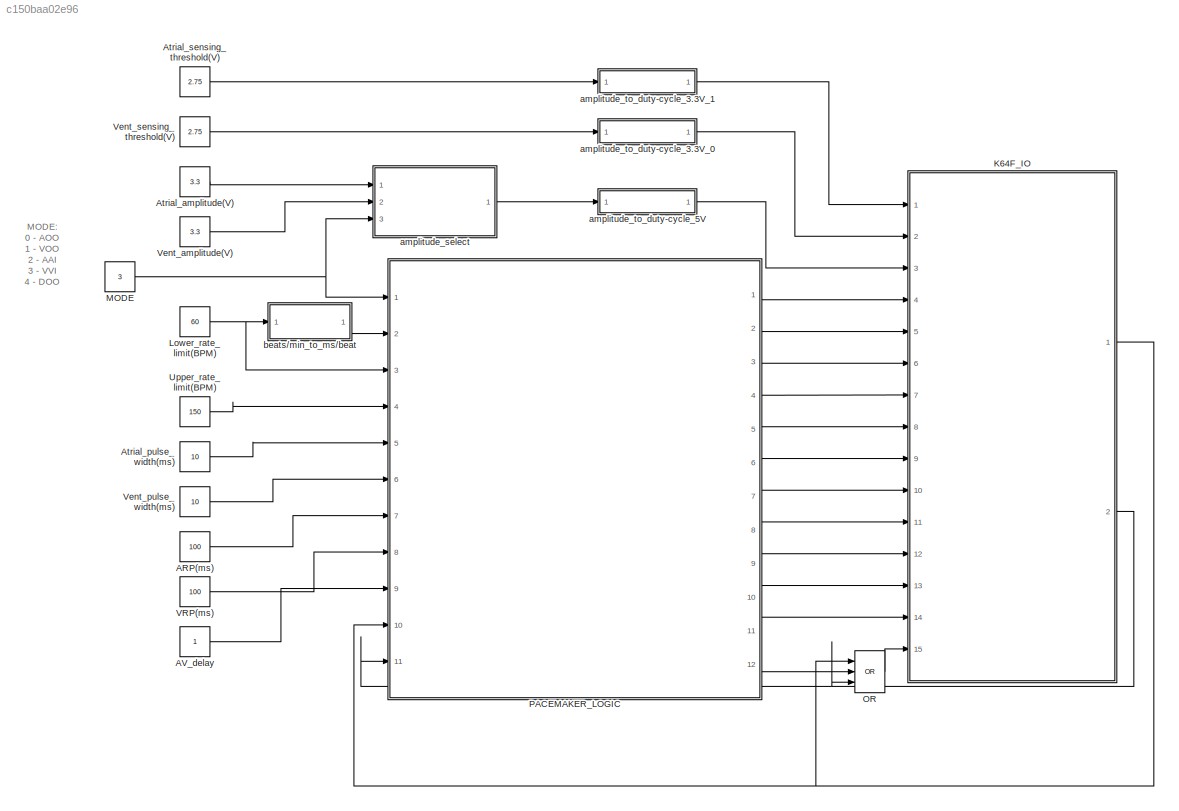
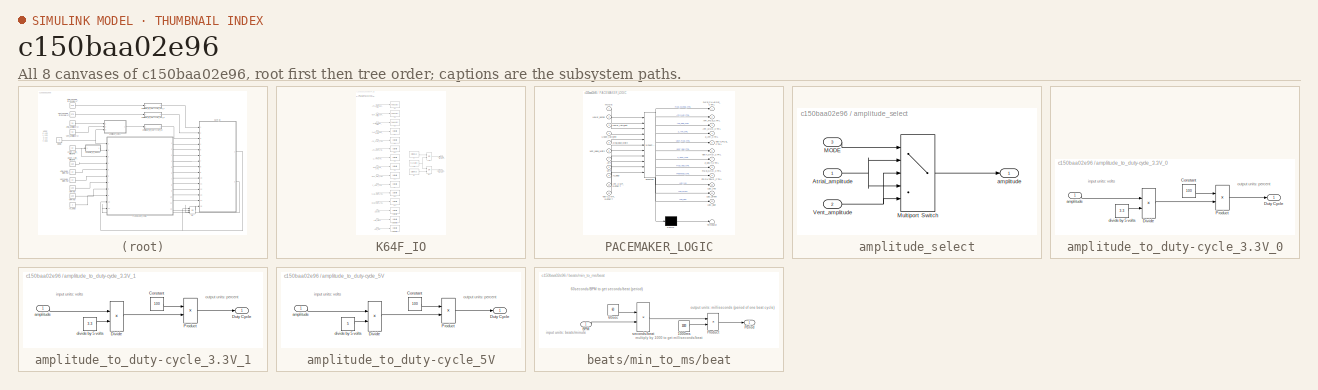
[diagram: thumbnail index - all 8 canvases of the model, root first then tree order]
MODEL slx_c150baa02e96
KIND model
CONFIG AbsTol = auto
CONFIG EnableMultiTasking = on
CONFIG FixedStep = 1e-3
CONFIG MaxStep = auto
CONFIG MinStep = auto
CONFIG RelTol = 1e-3
CONFIG SampleTimeConstraint = Unconstrained
CONFIG Solver = FixedStepAuto
CONFIG SolverName = FixedStepAuto
CONFIG StartTime = 0.0
CONFIG StopTime = inf
BLOCK [Constant] ARP(ms)
  OutDataTypeStr = uint16
  Value = 100
BLOCK [Constant] AV_delay
  OutDataTypeStr = uint16
BLOCK [Constant] Atrial_amplitude(V)
  OutDataTypeStr = double
  Value = 3.3
BLOCK [Constant] Atrial_pulse_width(ms)
  OutDataTypeStr = uint16
  Value = 10
BLOCK [Constant] Atrial_sensing_threshold(V)
  OutDataTypeStr = double
  Value = 2.75
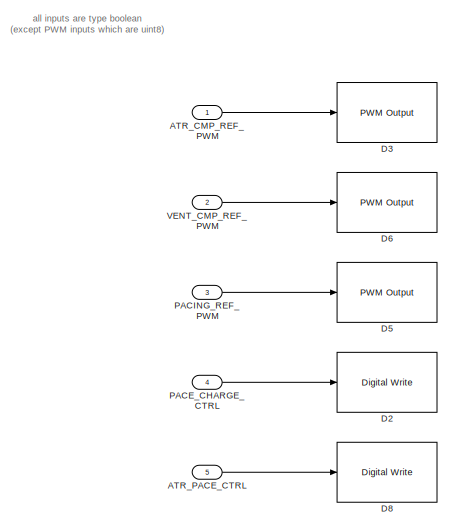
[diagram: K64F_IO - part 1/2, top left region]
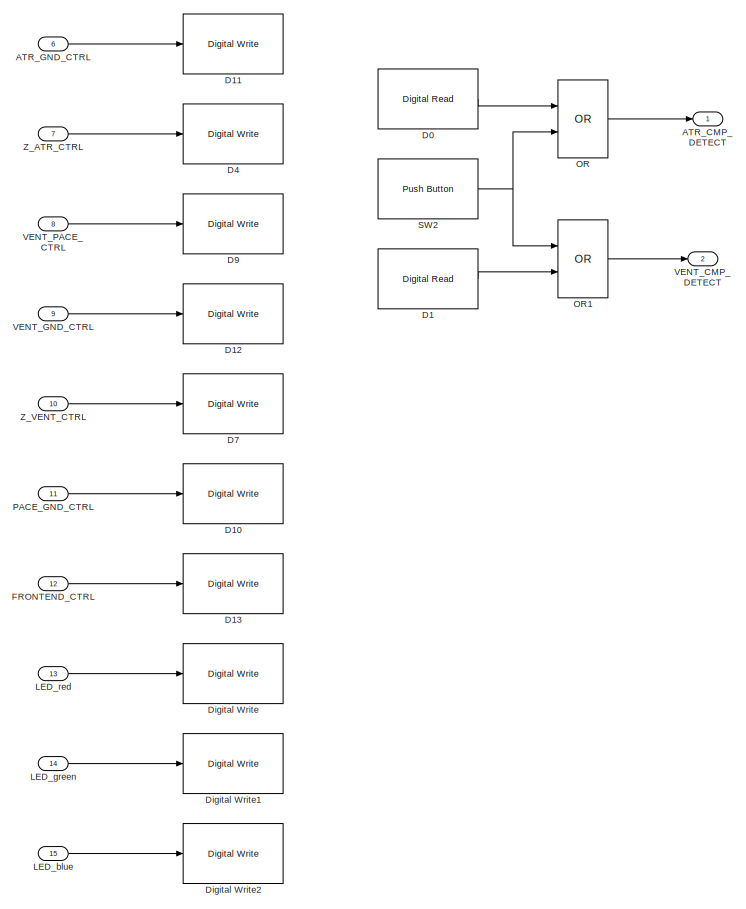
[diagram: K64F_IO - part 2/2, full width, bottom band]
BLOCK [SubSystem] K64F_IO
  Ports = [15, 2]
  RequestExecContextInheritance = off
BLOCK [Outport] K64F_IO/ATR_CMP_DETECT
  IconDisplay = Port number
  OutDataTypeStr = boolean
BLOCK [Inport] K64F_IO/ATR_CMP_REF_PWM
  IconDisplay = Port number
  OutDataTypeStr = uint8
BLOCK [Inport] K64F_IO/ATR_GND_CTRL
  IconDisplay = Port number
  OutDataTypeStr = boolean
  Port = 6
BLOCK [Inport] K64F_IO/ATR_PACE_CTRL
  IconDisplay = Port number
  OutDataTypeStr = boolean
  Port = 5
BLOCK [Reference] K64F_IO/D0  REF=frdmk64flib/Digital Read
  Ports = [0, 1]
  SourceBlock = frdmk64flib/Digital Read
  SourceProductBaseCode = EC_FRDM_K64F
  SourceProductName = Simulink Coder Support Package for NXP FRDM-K64F Board
  SourceType = freedomk64f.DigitalRead
BLOCK [Reference] K64F_IO/D1  REF=frdmk64flib/Digital Read
  Ports = [0, 1]
  SourceBlock = frdmk64flib/Digital Read
  SourceProductBaseCode = EC_FRDM_K64F
  SourceProductName = Simulink Coder Support Package for NXP FRDM-K64F Board
  SourceType = freedomk64f.DigitalRead
BLOCK [Reference] K64F_IO/D10  REF=frdmk64flib/Digital Write
  Ports = [1]
  SourceBlock = frdmk64flib/Digital Write
  SourceProductBaseCode = EC_FRDM_K64F
  SourceProductName = Simulink Coder Support Package for NXP FRDM-K64F Board
  SourceType = freedomk64f.DigitalWrite
BLOCK [Reference] K64F_IO/D11  REF=frdmk64flib/Digital Write
  Ports = [1]
  SourceBlock = frdmk64flib/Digital Write
  SourceProductBaseCode = EC_FRDM_K64F
  SourceProductName = Simulink Coder Support Package for NXP FRDM-K64F Board
  SourceType = freedomk64f.DigitalWrite
BLOCK [Reference] K64F_IO/D12  REF=frdmk64flib/Digital Write
  Ports = [1]
  SourceBlock = frdmk64flib/Digital Write
  SourceProductBaseCode = EC_FRDM_K64F
  SourceProductName = Simulink Coder Support Package for NXP FRDM-K64F Board
  SourceType = freedomk64f.DigitalWrite
BLOCK [Reference] K64F_IO/D13  REF=frdmk64flib/Digital Write
  Ports = [1]
  SourceBlock = frdmk64flib/Digital Write
  SourceProductBaseCode = EC_FRDM_K64F
  SourceProductName = Simulink Coder Support Package for NXP FRDM-K64F Board
  SourceType = freedomk64f.DigitalWrite
BLOCK [Reference] K64F_IO/D2  REF=frdmk64flib/Digital Write
  Ports = [1]
  SourceBlock = frdmk64flib/Digital Write
  SourceProductBaseCode = EC_FRDM_K64F
  SourceProductName = Simulink Coder Support Package for NXP FRDM-K64F Board
  SourceType = freedomk64f.DigitalWrite
BLOCK [Reference] K64F_IO/D3  REF=frdmk64flib/PWM Output
  Ports = [1]
  SourceBlock = frdmk64flib/PWM Output
  SourceProductBaseCode = EC_FRDM_K64F
  SourceProductName = Simulink Coder Support Package for NXP FRDM-K64F Board
  SourceType = freedomk64f.PWMOutput
BLOCK [Reference] K64F_IO/D4  REF=frdmk64flib/Digital Write
  Ports = [1]
  SourceBlock = frdmk64flib/Digital Write
  SourceProductBaseCode = EC_FRDM_K64F
  SourceProductName = Simulink Coder Support Package for NXP FRDM-K64F Board
  SourceType = freedomk64f.DigitalWrite
BLOCK [Reference] K64F_IO/D5  REF=frdmk64flib/PWM Output
  Ports = [1]
  SourceBlock = frdmk64flib/PWM Output
  SourceProductBaseCode = EC_FRDM_K64F
  SourceProductName = Simulink Coder Support Package for NXP FRDM-K64F Board
  SourceType = freedomk64f.PWMOutput
BLOCK [Reference] K64F_IO/D6  REF=frdmk64flib/PWM Output
  Ports = [1]
  SourceBlock = frdmk64flib/PWM Output
  SourceProductBaseCode = EC_FRDM_K64F
  SourceProductName = Simulink Coder Support Package for NXP FRDM-K64F Board
  SourceType = freedomk64f.PWMOutput
BLOCK [Reference] K64F_IO/D7  REF=frdmk64flib/Digital Write
  Ports = [1]
  SourceBlock = frdmk64flib/Digital Write
  SourceProductBaseCode = EC_FRDM_K64F
  SourceProductName = Simulink Coder Support Package for NXP FRDM-K64F Board
  SourceType = freedomk64f.DigitalWrite
BLOCK [Reference] K64F_IO/D8  REF=frdmk64flib/Digital Write
  Ports = [1]
  SourceBlock = frdmk64flib/Digital Write
  SourceProductBaseCode = EC_FRDM_K64F
  SourceProductName = Simulink Coder Support Package for NXP FRDM-K64F Board
  SourceType = freedomk64f.DigitalWrite
BLOCK [Reference] K64F_IO/D9  REF=frdmk64flib/Digital Write
  Ports = [1]
  SourceBlock = frdmk64flib/Digital Write
  SourceProductBaseCode = EC_FRDM_K64F
  SourceProductName = Simulink Coder Support Package for NXP FRDM-K64F Board
  SourceType = freedomk64f.DigitalWrite
BLOCK [Reference] K64F_IO/Digital Write  REF=frdmk64flib/Digital Write
  Ports = [1]
  SourceBlock = frdmk64flib/Digital Write
  SourceProductBaseCode = EC_FRDM_K64F
  SourceProductName = Simulink Coder Support Package for NXP FRDM-K64F Board
  SourceType = freedomk64f.DigitalWrite
BLOCK [Reference] K64F_IO/Digital Write1  REF=frdmk64flib/Digital Write
  Ports = [1]
  SourceBlock = frdmk64flib/Digital Write
  SourceProductBaseCode = EC_FRDM_K64F
  SourceProductName = Simulink Coder Support Package for NXP FRDM-K64F Board
  SourceType = freedomk64f.DigitalWrite
BLOCK [Reference] K64F_IO/Digital Write2  REF=frdmk64flib/Digital Write
  Ports = [1]
  SourceBlock = frdmk64flib/Digital Write
  SourceProductBaseCode = EC_FRDM_K64F
  SourceProductName = Simulink Coder Support Package for NXP FRDM-K64F Board
  SourceType = freedomk64f.DigitalWrite
BLOCK [Inport] K64F_IO/FRONTEND_CTRL
  IconDisplay = Port number
  OutDataTypeStr = boolean
  Port = 12
BLOCK [Inport] K64F_IO/LED_blue
  IconDisplay = Port number
  OutDataTypeStr = boolean
  Port = 15
BLOCK [Inport] K64F_IO/LED_green
  IconDisplay = Port number
  OutDataTypeStr = boolean
  Port = 14
BLOCK [Inport] K64F_IO/LED_red
  IconDisplay = Port number
  OutDataTypeStr = boolean
  Port = 13
BLOCK [Logic] K64F_IO/OR
  AllPortsSameDT = off
  IconShape = distinctive
  Operator = OR
  OutDataTypeStr = boolean
  Ports = [2, 1]
BLOCK [Logic] K64F_IO/OR1
  AllPortsSameDT = off
  IconShape = distinctive
  Operator = OR
  OutDataTypeStr = boolean
  Ports = [2, 1]
BLOCK [Inport] K64F_IO/PACE_CHARGE_CTRL
  IconDisplay = Port number
  OutDataTypeStr = boolean
  Port = 4
BLOCK [Inport] K64F_IO/PACE_GND_CTRL
  IconDisplay = Port number
  OutDataTypeStr = boolean
  Port = 11
BLOCK [Inport] K64F_IO/PACING_REF_PWM
  IconDisplay = Port number
  OutDataTypeStr = uint8
  Port = 3
BLOCK [Reference] K64F_IO/SW2  REF=frdmk64flib/Push Button
  Ports = [0, 1]
  SourceBlock = frdmk64flib/Push Button
  SourceProductBaseCode = EC_FRDM_K64F
  SourceProductName = Simulink Coder Support Package for NXP FRDM-K64F Board
  SourceType = freedomk64f.PushButton
BLOCK [Outport] K64F_IO/VENT_CMP_DETECT
  IconDisplay = Port number
  OutDataTypeStr = boolean
  Port = 2
BLOCK [Inport] K64F_IO/VENT_CMP_REF_PWM
  IconDisplay = Port number
  OutDataTypeStr = uint8
  Port = 2
BLOCK [Inport] K64F_IO/VENT_GND_CTRL
  IconDisplay = Port number
  OutDataTypeStr = boolean
  Port = 9
BLOCK [Inport] K64F_IO/VENT_PACE_CTRL
  IconDisplay = Port number
  OutDataTypeStr = boolean
  Port = 8
BLOCK [Inport] K64F_IO/Z_ATR_CTRL
  IconDisplay = Port number
  OutDataTypeStr = boolean
  Port = 7
BLOCK [Inport] K64F_IO/Z_VENT_CTRL
  IconDisplay = Port number
  OutDataTypeStr = boolean
  Port = 10
BLOCK [Constant] Lower_rate_limit(BPM)
  OutDataTypeStr = uint16
  Value = 60
BLOCK [Constant] MODE
  OutDataTypeStr = uint8
  Value = 3
BLOCK [Logic] OR
  AllPortsSameDT = off
  IconShape = distinctive
  Inputs = 3
  Operator = OR
  OutDataTypeStr = boolean
  Ports = [3, 1]
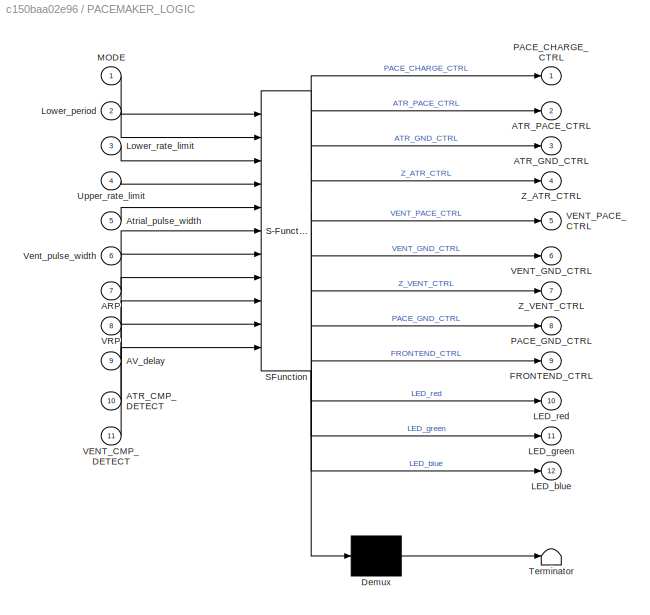
BLOCK [SubSystem] PACEMAKER_LOGIC
  BlockKeywords = __PRM__SERIALIZED__DATA__:Stateflow Chart,Stateflow Diagram
  ErrorFcn = Stateflow.Translate.translate
  PermitHierarchicalResolution = ExplicitOnly
  Ports = [11, 12]
  RequestExecContextInheritance = off
  SFBlockType = Chart
  TreatAsAtomicUnit = on
BLOCK [Demux] PACEMAKER_LOGIC/ Demux 
  Outputs = 1
  Ports = [1, 1]
BLOCK [S-Function] PACEMAKER_LOGIC/ SFunction 
  EnableBusSupport = on
  FunctionName = sf_sfun
  PortCounts = [11 13]
  Ports = [11, 13]
  SFcnIsStateOwnerBlock = off
  SFunctionDeploymentMode = off
  Tag = Stateflow S-Function Pacemaker_model_laura 3
BLOCK [Terminator] PACEMAKER_LOGIC/ Terminator 
BLOCK [Inport] PACEMAKER_LOGIC/ARP
  IconDisplay = Port number
  Port = 7
BLOCK [Inport] PACEMAKER_LOGIC/ATR_CMP_DETECT
  IconDisplay = Port number
  Port = 10
BLOCK [Outport] PACEMAKER_LOGIC/ATR_GND_CTRL
  IconDisplay = Port number
  Port = 3
BLOCK [Outport] PACEMAKER_LOGIC/ATR_PACE_CTRL
  IconDisplay = Port number
  Port = 2
BLOCK [Inport] PACEMAKER_LOGIC/AV_delay
  IconDisplay = Port number
  Port = 9
BLOCK [Inport] PACEMAKER_LOGIC/Atrial_pulse_width
  IconDisplay = Port number
  Port = 5
BLOCK [Outport] PACEMAKER_LOGIC/FRONTEND_CTRL
  IconDisplay = Port number
  Port = 9
BLOCK [Outport] PACEMAKER_LOGIC/LED_blue
  IconDisplay = Port number
  Port = 12
BLOCK [Outport] PACEMAKER_LOGIC/LED_green
  IconDisplay = Port number
  Port = 11
BLOCK [Outport] PACEMAKER_LOGIC/LED_red
  IconDisplay = Port number
  Port = 10
BLOCK [Inport] PACEMAKER_LOGIC/Lower_period
  IconDisplay = Port number
  Port = 2
BLOCK [Inport] PACEMAKER_LOGIC/Lower_rate_limit
  IconDisplay = Port number
  Port = 3
BLOCK [Inport] PACEMAKER_LOGIC/MODE
  IconDisplay = Port number
BLOCK [Outport] PACEMAKER_LOGIC/PACE_CHARGE_CTRL
  IconDisplay = Port number
BLOCK [Outport] PACEMAKER_LOGIC/PACE_GND_CTRL
  IconDisplay = Port number
  Port = 8
BLOCK [Inport] PACEMAKER_LOGIC/Upper_rate_limit
  IconDisplay = Port number
  Port = 4
BLOCK [Inport] PACEMAKER_LOGIC/VENT_CMP_DETECT
  IconDisplay = Port number
  Port = 11
BLOCK [Outport] PACEMAKER_LOGIC/VENT_GND_CTRL
  IconDisplay = Port number
  Port = 6
BLOCK [Outport] PACEMAKER_LOGIC/VENT_PACE_CTRL
  IconDisplay = Port number
  Port = 5
BLOCK [Inport] PACEMAKER_LOGIC/VRP
  IconDisplay = Port number
  Port = 8
BLOCK [Inport] PACEMAKER_LOGIC/Vent_pulse_width
  IconDisplay = Port number
  Port = 6
BLOCK [Outport] PACEMAKER_LOGIC/Z_ATR_CTRL
  IconDisplay = Port number
  Port = 4
BLOCK [Outport] PACEMAKER_LOGIC/Z_VENT_CTRL
  IconDisplay = Port number
  Port = 7
BLOCK [Constant] Upper_rate_limit(BPM)
  OutDataTypeStr = uint16
  Value = 150
BLOCK [Constant] VRP(ms)
  OutDataTypeStr = uint16
  Value = 100
BLOCK [Constant] Vent_amplitude(V)
  OutDataTypeStr = double
  Value = 3.3
BLOCK [Constant] Vent_pulse_width(ms)
  OutDataTypeStr = uint16
  Value = 10
BLOCK [Constant] Vent_sensing_threshold(V)
  OutDataTypeStr = double
  Value = 2.75
BLOCK [SubSystem] amplitude_select
  Ports = [3, 1]
  RequestExecContextInheritance = off
BLOCK [Inport] amplitude_select/Atrial_amplitude
  IconDisplay = Port number
  OutDataTypeStr = double
BLOCK [Inport] amplitude_select/MODE
  IconDisplay = Port number
  OutDataTypeStr = uint8
  Port = 3
BLOCK [MultiPortSwitch] amplitude_select/Multiport Switch
  DataPortOrder = Zero-based contiguous
  InputSameDT = off
  Inputs = 4
  Ports = [5, 1]
  SaturateOnIntegerOverflow = off
  zeroidx = on
BLOCK [Inport] amplitude_select/Vent_amplitude
  IconDisplay = Port number
  OutDataTypeStr = double
  Port = 2
BLOCK [Outport] amplitude_select/amplitude
  IconDisplay = Port number
  OutDataTypeStr = double
BLOCK [SubSystem] amplitude_to_duty-cycle_3.3V_0
  Ports = [1, 1]
  RequestExecContextInheritance = off
BLOCK [Constant] amplitude_to_duty-cycle_3.3V_0/Constant
  OutDataTypeStr = double
  Value = 100
BLOCK [Product] amplitude_to_duty-cycle_3.3V_0/Divide
  InputSameDT = off
  Inputs = */
  OutDataTypeStr = double
  Ports = [2, 1]
  RndMeth = Floor
  SaturateOnIntegerOverflow = off
BLOCK [Outport] amplitude_to_duty-cycle_3.3V_0/Duty Cycle
  IconDisplay = Port number
  OutDataTypeStr = uint8
BLOCK [Product] amplitude_to_duty-cycle_3.3V_0/Product
  InputSameDT = off
  OutDataTypeStr = uint8
  Ports = [2, 1]
  RndMeth = Round
  SaturateOnIntegerOverflow = off
BLOCK [Inport] amplitude_to_duty-cycle_3.3V_0/amplitude
  IconDisplay = Port number
  OutDataTypeStr = double
BLOCK [Constant] amplitude_to_duty-cycle_3.3V_0/divide by 5 volts
  OutDataTypeStr = double
  Value = 3.3
BLOCK [SubSystem] amplitude_to_duty-cycle_3.3V_1
  Ports = [1, 1]
  RequestExecContextInheritance = off
BLOCK [Constant] amplitude_to_duty-cycle_3.3V_1/Constant
  OutDataTypeStr = double
  Value = 100
BLOCK [Product] amplitude_to_duty-cycle_3.3V_1/Divide
  InputSameDT = off
  Inputs = */
  OutDataTypeStr = double
  Ports = [2, 1]
  RndMeth = Floor
  SaturateOnIntegerOverflow = off
BLOCK [Outport] amplitude_to_duty-cycle_3.3V_1/Duty Cycle
  IconDisplay = Port number
  OutDataTypeStr = uint8
BLOCK [Product] amplitude_to_duty-cycle_3.3V_1/Product
  InputSameDT = off
  OutDataTypeStr = uint8
  Ports = [2, 1]
  RndMeth = Round
  SaturateOnIntegerOverflow = off
BLOCK [Inport] amplitude_to_duty-cycle_3.3V_1/amplitude
  IconDisplay = Port number
  OutDataTypeStr = double
BLOCK [Constant] amplitude_to_duty-cycle_3.3V_1/divide by 5 volts
  OutDataTypeStr = double
  Value = 3.3
BLOCK [SubSystem] amplitude_to_duty-cycle_5V
  Ports = [1, 1]
  RequestExecContextInheritance = off
BLOCK [Constant] amplitude_to_duty-cycle_5V/Constant
  OutDataTypeStr = double
  Value = 100
BLOCK [Product] amplitude_to_duty-cycle_5V/Divide
  InputSameDT = off
  Inputs = */
  OutDataTypeStr = double
  Ports = [2, 1]
  RndMeth = Floor
  SaturateOnIntegerOverflow = off
BLOCK [Outport] amplitude_to_duty-cycle_5V/Duty Cycle
  IconDisplay = Port number
  OutDataTypeStr = uint8
BLOCK [Product] amplitude_to_duty-cycle_5V/Product
  InputSameDT = off
  OutDataTypeStr = uint8
  Ports = [2, 1]
  RndMeth = Round
  SaturateOnIntegerOverflow = off
BLOCK [Inport] amplitude_to_duty-cycle_5V/amplitude
  IconDisplay = Port number
  OutDataTypeStr = double
BLOCK [Constant] amplitude_to_duty-cycle_5V/divide by 5 volts
  OutDataTypeStr = double
  Value = 5
BLOCK [SubSystem] beats//min_to_ms//beat
  Ports = [1, 1]
  RequestExecContextInheritance = off
BLOCK [Constant] beats//min_to_ms//beat/1000ms
  OutDataTypeStr = double
  Value = 1000
BLOCK [Constant] beats//min_to_ms//beat/60sec
  OutDataTypeStr = double
  Value = 60
BLOCK [Inport] beats//min_to_ms//beat/BPM
  IconDisplay = Port number
  OutDataTypeStr = uint16
BLOCK [Outport] beats//min_to_ms//beat/Period
  IconDisplay = Port number
  OutDataTypeStr = uint16
BLOCK [Product] beats//min_to_ms//beat/Product
  InputSameDT = off
  OutDataTypeStr = uint16
  Ports = [2, 1]
  RndMeth = Round
  SaturateOnIntegerOverflow = off
BLOCK [Product] beats//min_to_ms//beat/seconds//beat
  InputSameDT = off
  Inputs = */
  OutDataTypeStr = double
  Ports = [2, 1]
  RndMeth = Floor
  SaturateOnIntegerOverflow = off
ANNOTATION (root): MODE : 0 - AOO 1 - VOO 2 - AAI 3 - VVI 4 - DOO 5 - AOOR 6 - VOOR 7 - AAIR 8 - VVIR 9 - DOOR 10 - DDDR
ANNOTATION K64F_IO: all inputs are type boolean (except PWM inputs which are uint8)
ANNOTATION amplitude_to_duty-cycle_3.3V_0: input units: volts
ANNOTATION amplitude_to_duty-cycle_3.3V_0: output units: percent
ANNOTATION amplitude_to_duty-cycle_3.3V_1: input units: volts
ANNOTATION amplitude_to_duty-cycle_3.3V_1: output units: percent
ANNOTATION amplitude_to_duty-cycle_5V: input units: volts
ANNOTATION amplitude_to_duty-cycle_5V: output units: percent
ANNOTATION beats//min_to_ms//beat: 60seconds/BPM to get seconds/beat (period)
ANNOTATION beats//min_to_ms//beat: input units: beats/minute
ANNOTATION beats//min_to_ms//beat: multiply by 1000 to get milliseconds/beat
ANNOTATION beats//min_to_ms//beat: output units: milliseconds (period of one beat cycle)
LINE ARP(ms):1 -> PACEMAKER_LOGIC:7
LINE AV_delay:1 -> PACEMAKER_LOGIC:9
LINE Atrial_amplitude(V):1 -> amplitude_select:1
LINE Atrial_pulse_width(ms):1 -> PACEMAKER_LOGIC:5
LINE Atrial_sensing_threshold(V):1 -> amplitude_to_duty-cycle_3.3V_1:1
LINE K64F_IO/ATR_CMP_REF_PWM:1 -> K64F_IO/D3:1
LINE K64F_IO/ATR_GND_CTRL:1 -> K64F_IO/D11:1
LINE K64F_IO/ATR_PACE_CTRL:1 -> K64F_IO/D8:1
LINE K64F_IO/D0:1 -> K64F_IO/OR:1
LINE K64F_IO/D1:1 -> K64F_IO/OR1:2
LINE K64F_IO/FRONTEND_CTRL:1 -> K64F_IO/D13:1
LINE K64F_IO/LED_blue:1 -> K64F_IO/Digital Write2:1
LINE K64F_IO/LED_green:1 -> K64F_IO/Digital Write1:1
LINE K64F_IO/LED_red:1 -> K64F_IO/Digital Write:1
LINE K64F_IO/OR1:1 -> K64F_IO/VENT_CMP_DETECT:1
LINE K64F_IO/OR:1 -> K64F_IO/ATR_CMP_DETECT:1
LINE K64F_IO/PACE_CHARGE_CTRL:1 -> K64F_IO/D2:1
LINE K64F_IO/PACE_GND_CTRL:1 -> K64F_IO/D10:1
LINE K64F_IO/PACING_REF_PWM:1 -> K64F_IO/D5:1
NET K64F_IO/SW2:1 -> K64F_IO/OR1:1, K64F_IO/OR:2
LINE K64F_IO/VENT_CMP_REF_PWM:1 -> K64F_IO/D6:1
LINE K64F_IO/VENT_GND_CTRL:1 -> K64F_IO/D12:1
LINE K64F_IO/VENT_PACE_CTRL:1 -> K64F_IO/D9:1
LINE K64F_IO/Z_ATR_CTRL:1 -> K64F_IO/D4:1
LINE K64F_IO/Z_VENT_CTRL:1 -> K64F_IO/D7:1
NET K64F_IO:1 -> OR:1, PACEMAKER_LOGIC:10
NET K64F_IO:2 -> OR:3, PACEMAKER_LOGIC:11
NET Lower_rate_limit(BPM):1 -> PACEMAKER_LOGIC:3, beats//min_to_ms//beat:1
NET MODE:1 -> PACEMAKER_LOGIC:1, amplitude_select:3
LINE OR:1 -> K64F_IO:15
LINE PACEMAKER_LOGIC:1 -> K64F_IO:4
LINE PACEMAKER_LOGIC:10 -> K64F_IO:13
LINE PACEMAKER_LOGIC:11 -> K64F_IO:14
LINE PACEMAKER_LOGIC:12 -> OR:2
LINE PACEMAKER_LOGIC:2 -> K64F_IO:5
LINE PACEMAKER_LOGIC:3 -> K64F_IO:6
LINE PACEMAKER_LOGIC:4 -> K64F_IO:7
LINE PACEMAKER_LOGIC:5 -> K64F_IO:8
LINE PACEMAKER_LOGIC:6 -> K64F_IO:9
LINE PACEMAKER_LOGIC:7 -> K64F_IO:10
LINE PACEMAKER_LOGIC:8 -> K64F_IO:11
LINE PACEMAKER_LOGIC:9 -> K64F_IO:12
LINE Upper_rate_limit(BPM):1 -> PACEMAKER_LOGIC:4
LINE VRP(ms):1 -> PACEMAKER_LOGIC:8
LINE Vent_amplitude(V):1 -> amplitude_select:2
LINE Vent_pulse_width(ms):1 -> PACEMAKER_LOGIC:6
LINE Vent_sensing_threshold(V):1 -> amplitude_to_duty-cycle_3.3V_0:1
NET amplitude_select/Atrial_amplitude:1 -> amplitude_select/Multiport Switch:2, amplitude_select/Multiport Switch:4
LINE amplitude_select/MODE:1 -> amplitude_select/Multiport Switch:1
LINE amplitude_select/Multiport Switch:1 -> amplitude_select/amplitude:1
NET amplitude_select/Vent_amplitude:1 -> amplitude_select/Multiport Switch:3, amplitude_select/Multiport Switch:5
LINE amplitude_select:1 -> amplitude_to_duty-cycle_5V:1
LINE amplitude_to_duty-cycle_3.3V_0/Constant:1 -> amplitude_to_duty-cycle_3.3V_0/Product:1
LINE amplitude_to_duty-cycle_3.3V_0/Divide:1 -> amplitude_to_duty-cycle_3.3V_0/Product:2
LINE amplitude_to_duty-cycle_3.3V_0/Product:1 -> amplitude_to_duty-cycle_3.3V_0/Duty Cycle:1
LINE amplitude_to_duty-cycle_3.3V_0/amplitude:1 -> amplitude_to_duty-cycle_3.3V_0/Divide:1
LINE amplitude_to_duty-cycle_3.3V_0/divide by 5 volts:1 -> amplitude_to_duty-cycle_3.3V_0/Divide:2
LINE amplitude_to_duty-cycle_3.3V_0:1 -> K64F_IO:2
LINE amplitude_to_duty-cycle_3.3V_1/Constant:1 -> amplitude_to_duty-cycle_3.3V_1/Product:1
LINE amplitude_to_duty-cycle_3.3V_1/Divide:1 -> amplitude_to_duty-cycle_3.3V_1/Product:2
LINE amplitude_to_duty-cycle_3.3V_1/Product:1 -> amplitude_to_duty-cycle_3.3V_1/Duty Cycle:1
LINE amplitude_to_duty-cycle_3.3V_1/amplitude:1 -> amplitude_to_duty-cycle_3.3V_1/Divide:1
LINE amplitude_to_duty-cycle_3.3V_1/divide by 5 volts:1 -> amplitude_to_duty-cycle_3.3V_1/Divide:2
LINE amplitude_to_duty-cycle_3.3V_1:1 -> K64F_IO:1
LINE amplitude_to_duty-cycle_5V/Constant:1 -> amplitude_to_duty-cycle_5V/Product:1
LINE amplitude_to_duty-cycle_5V/Divide:1 -> amplitude_to_duty-cycle_5V/Product:2
LINE amplitude_to_duty-cycle_5V/Product:1 -> amplitude_to_duty-cycle_5V/Duty Cycle:1
LINE amplitude_to_duty-cycle_5V/amplitude:1 -> amplitude_to_duty-cycle_5V/Divide:1
LINE amplitude_to_duty-cycle_5V/divide by 5 volts:1 -> amplitude_to_duty-cycle_5V/Divide:2
LINE amplitude_to_duty-cycle_5V:1 -> K64F_IO:3
LINE beats//min_to_ms//beat/1000ms:1 -> beats//min_to_ms//beat/Product:2
LINE beats//min_to_ms//beat/60sec:1 -> beats//min_to_ms//beat/seconds//beat:1
LINE beats//min_to_ms//beat/BPM:1 -> beats//min_to_ms//beat/seconds//beat:2
LINE beats//min_to_ms//beat/Product:1 -> beats//min_to_ms//beat/Period:1
LINE beats//min_to_ms//beat/seconds//beat:1 -> beats//min_to_ms//beat/Product:1
LINE beats//min_to_ms//beat:1 -> PACEMAKER_LOGIC:2
note: NET lines group one-source signal fan-out (src -> all destinations, sorted); 1:1 wires keep LINE
CHART PACEMAKER_LOGIC states=20 transitions=33
  STATE_LABEL 'AOO'
  STATE_LABEL 'AOO_PACE_ATRIUM\nentry:\nLED_green = true;\nPACE_CHARGE_CTRL = false;\nPACE_GND_CTRL = true;\nVENT_PACE_CTRL = false;\nVENT_GND_CTRL = false;\nZ_VENT_CTRL = false;\nZ_ATR_CTRL = false;\nATR_GND_CTRL = false;\nATR_PACE_CTRL = true;'  <repeated x3 — deduplicated; at blocks: PACEMAKER_LOGIC>
  STATE_LABEL 'AOO_DischargeC21_ChargeC22\nentry:\nLED_red = false;\nLED_green = false;\nPACE_GND_CTRL = true;\nATR_PACE_CTRL = false;\nZ_ATR_CTRL = false;\nZ_VENT_CTRL = false;\nVENT_PACE_CTRL = false;\nVENT_GND_CTRL = false;\nATR_GND_CTRL = true;\nPACE_CHARGE_CTRL = true;\n'  <repeated x3 — deduplicated; at blocks: PACEMAKER_LOGIC>
  STATE_LABEL 'after((Lower_period-Atrial_pulse_width), msec)'
  STATE_LABEL '[MODE==0]'
  STATE_LABEL 'after(Atrial_pulse_width, msec)'
  STATE_LABEL 'VOO'
  STATE_LABEL 'VOO_PACE_VENT\nentry:\nLED_green = true;\nPACE_CHARGE_CTRL = false;\nPACE_GND_CTRL = true;\nATR_PACE_CTRL = false;\nATR_GND_CTRL = false;\nZ_ATR_CTRL = false;\nZ_VENT_CTRL = false;\nVENT_GND_CTRL = false;\nVENT_PACE_CTRL = true;'  <repeated x3 — deduplicated; at blocks: PACEMAKER_LOGIC>
  STATE_LABEL 'VOO_DischargeC21_ChargeC22\nentry:\nLED_red = false;\nLED_green = false;\nPACE_GND_CTRL = true;\nVENT_PACE_CTRL = false;\nZ_VENT_CTRL = false;\nZ_ATR_CTRL = false;\nATR_PACE_CTRL = false;\nATR_GND_CTRL = false;\nVENT_GND_CTRL = true;\nPACE_CHARGE_CTRL = true;\n'  <repeated x4 — deduplicated; at blocks: PACEMAKER_LOGIC>
  STATE_LABEL 'after((Lower_period-Vent_pulse_width), msec)'
  STATE_LABEL '[MODE==1]'
  STATE_LABEL 'after(Vent_pulse_width, msec)'
  STATE_LABEL 'HOLD\nentry:\nPACE_CHARGE_CTRL = false;\nPACE_GND_CTRL = false;\nATR_GND_CTRL = false;\nVENT_GND_CTRL = false;\nATR_PACE_CTRL = false;\nVENT_PACE_CTRL = false;\nFRONTEND_CTRL = true;\nLED_red = true;\nLED_green = false;\nLED_blue = false;'
  STATE_LABEL 'AAI'
  STATE_LABEL 'ARP\nentry:\nLED_green = false;\nPACE_GND_CTRL = true;\nATR_PACE_CTRL = false;\nZ_ATR_CTRL = false;\nZ_VENT_CTRL = false;\nVENT_PACE_CTRL = false;\nVENT_GND_CTRL = false;\nATR_GND_CTRL = true;\nPACE_CHARGE_CTRL = true;'
  STATE_LABEL 'AAI_PACE_ATRIUM\nentry:\nFRONTEND_CTRL = false;\nLED_green = true;\nPACE_CHARGE_CTRL = false;\nPACE_GND_CTRL = true;\nVENT_PACE_CTRL = false;\nVENT_GND_CTRL = false;\nZ_VENT_CTRL = false;\nZ_ATR_CTRL = false;\nATR_GND_CTRL = false;\nATR_PACE_CTRL = true;'
  STATE_LABEL 'AAI_DischargeC21_ChargeC22\nentry:\nFRONTEND_CTRL = true;\nLED_blue = false;\nLED_red = false;\nLED_green = false;\nPACE_GND_CTRL = true;\nATR_PACE_CTRL = false;\nZ_ATR_CTRL = false;\nZ_VENT_CTRL = false;\nVENT_PACE_CTRL = false;\nVENT_GND_CTRL = false;\nATR_GND_CTRL = true;\nPACE_CHARGE_CTRL = true;\n'
  STATE_LABEL 'after(Atrial_pulse_width, msec)'
  STATE_LABEL '[ATR_CMP_DETECT==true]'
  STATE_LABEL 'after(ARP, msec)'
  STATE_LABEL '[MODE==2]'
  STATE_LABEL 'after((Lower_period-Atrial_pulse_width-ARP), msec)'
  STATE_LABEL 'ARP\nentry:\nLED_green = false;\nPACE_GND_CTRL = true;\nATR_PACE_CTRL = false;\nZ_ATR_CTRL = false;\nZ_VENT_CTRL = false;\nVENT_PACE_CTRL = false;\nVENT_GND_CTRL = false;\nATR_GND_CTRL = true;\nPACE_CHARGE_CTRL = true;'
  STATE_LABEL 'AAI_PACE_ATRIUM\nentry:\nFRONTEND_CTRL = false;\nLED_green = true;\nPACE_CHARGE_CTRL = false;\nPACE_GND_CTRL = true;\nVENT_PACE_CTRL = false;\nVENT_GND_CTRL = false;\nZ_VENT_CTRL = false;\nZ_ATR_CTRL = false;\nATR_GND_CTRL = false;\nATR_PACE_CTRL = true;'
  STATE_LABEL 'AAI_DischargeC21_ChargeC22\nentry:\nFRONTEND_CTRL = true;\nLED_blue = false;\nLED_red = false;\nLED_green = false;\nPACE_GND_CTRL = true;\nATR_PACE_CTRL = false;\nZ_ATR_CTRL = false;\nZ_VENT_CTRL = false;\nVENT_PACE_CTRL = false;\nVENT_GND_CTRL = false;\nATR_GND_CTRL = true;\nPACE_CHARGE_CTRL = true;\n'
  STATE_LABEL 'DOO'
  STATE_LABEL '[MODE==4]'
  STATE_LABEL 'after(Lower_period-(AV_delay+Vent_pulse_width), msec)'
  STATE_LABEL 'after(Atrial_pulse_width, msec)'
  STATE_LABEL 'after(Vent_pulse_width, msec)'
  STATE_LABEL 'after(AV_delay - Atrial_pulse_width, msec)'
